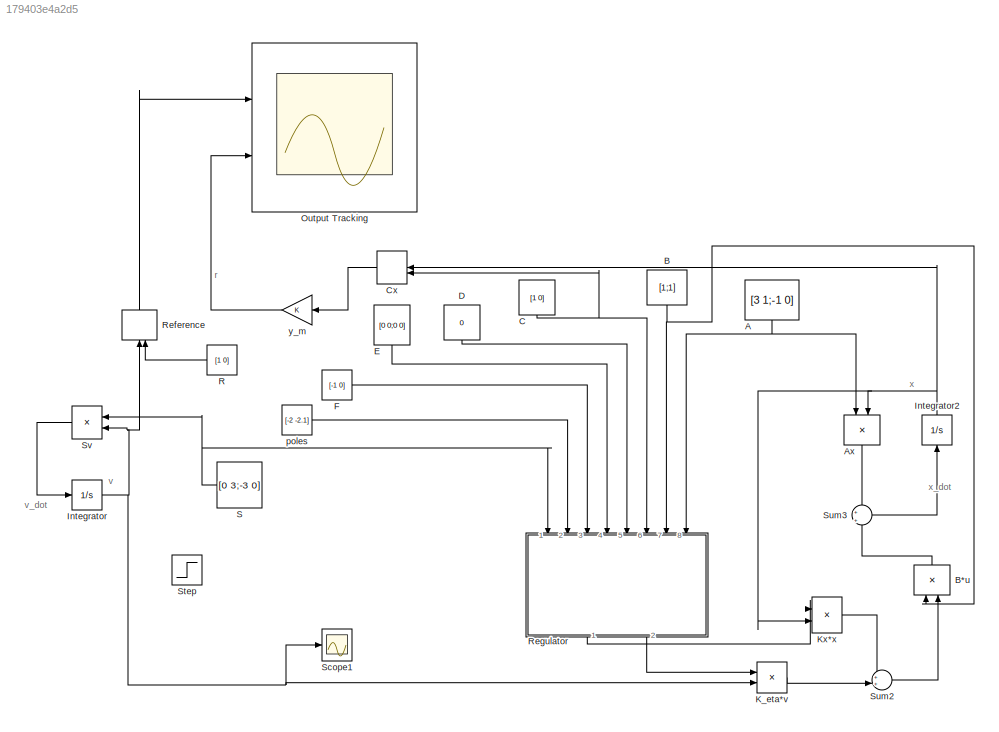
MODEL slx_179403e4a2d5
KIND model
CONFIG AbsTol = auto
CONFIG EnableMultiTasking = off
CONFIG FixedStep = auto
CONFIG MaxStep = 0.01
CONFIG MinStep = auto
CONFIG RelTol = 1e-3
CONFIG SampleTimeConstraint = Unconstrained
CONFIG Solver = ode23tb
CONFIG SolverName = ode23tb
CONFIG StartTime = 0.0
CONFIG StopTime = 10.0
BLOCK [Constant] A
  Value = [3 1;-1 0]
BLOCK [Product] Ax
  InputSameDT = off
  Multiplication = Matrix(*)
  OutDataTypeStr = Inherit: Inherit via internal rule
  Ports = [2, 1]
  RndMeth = Floor
  SaturateOnIntegerOverflow = off
BLOCK [Constant] B
  Value = [1;1]
  VectorParams1D = off
BLOCK [Product] B*u
  InputSameDT = off
  Multiplication = Matrix(*)
  OutDataTypeStr = Inherit: Inherit via internal rule
  Ports = [2, 1]
  RndMeth = Floor
  SaturateOnIntegerOverflow = off
BLOCK [Constant] C
  Value = [1 0]
  VectorParams1D = off
BLOCK [DotProduct] Cx
  OutDataTypeStr = Inherit: Inherit via internal rule
BLOCK [Constant] D
  Value = 0
BLOCK [Constant] E
  Value = [0 0;0 0]
BLOCK [Constant] F
  Value = [-1 0]
  VectorParams1D = off
BLOCK [Integrator] Integrator
  InitialCondition = [1;0]
  Ports = [1, 1]
BLOCK [Integrator] Integrator2
  InitialCondition = [1 1]
  Ports = [1, 1]
BLOCK [Product] K_eta*v
  InputSameDT = off
  Multiplication = Matrix(*)
  OutDataTypeStr = Inherit: Inherit via internal rule
  Ports = [2, 1]
  RndMeth = Floor
  SaturateOnIntegerOverflow = off
BLOCK [Product] Kx*x
  InputSameDT = off
  Multiplication = Matrix(*)
  OutDataTypeStr = Inherit: Inherit via internal rule
  Ports = [2, 1]
  RndMeth = Floor
  SaturateOnIntegerOverflow = off
BLOCK [Scope] Output Tracking
  NumInputPorts = 2
  Ports = [2]
  ScopeSpecificationString = Simulink.scopes.TimeScopeBlockCfg('CurrentConfiguration', extmgr.ConfigurationSet(extmgr.Configuration('Core','General UI',true),extmgr.Configuration('Core','Source UI',true),extmgr.Configuration('Sources','WiredSimulink',true),extmgr.Configuration('Visuals','Time Domain',true,'SerializedDisplays',{struct('MinYLimReal','-1.25027','MaxYLimReal','1.25246','YLabelReal','','MinYLimMag','0.00000','MaxY...<+1362ch>
BLOCK [Constant] R
  Value = [1 0]
BLOCK [DotProduct] Reference
  OutDataTypeStr = Inherit: Inherit via internal rule
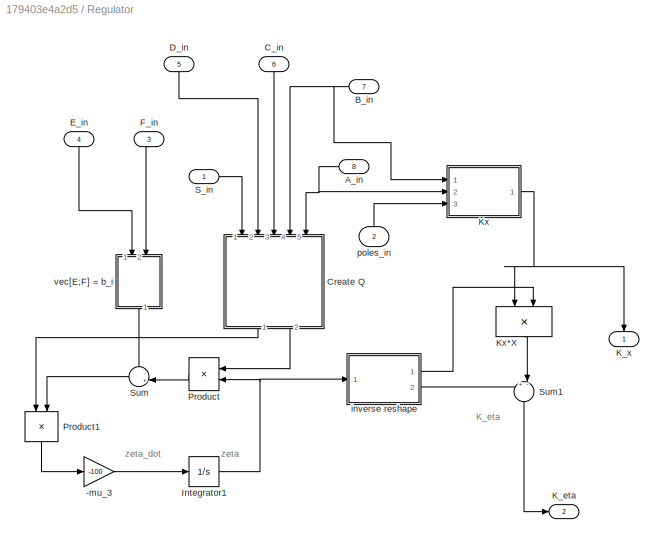
BLOCK [SubSystem] Regulator
  Ports = [8, 2]
  RequestExecContextInheritance = off
  Variant = off
BLOCK [Gain] Regulator/-mu_3
  Gain = -100
  OutDataTypeStr = Inherit: Inherit via internal rule
  ParamDataTypeStr = Inherit: Inherit via internal rule
  SaturateOnIntegerOverflow = off
BLOCK [Inport] Regulator/A_in
  IconDisplay = Port number
  Port = 8
BLOCK [Inport] Regulator/B_in
  IconDisplay = Port number
  Port = 7
BLOCK [Inport] Regulator/C_in
  IconDisplay = Port number
  Port = 6
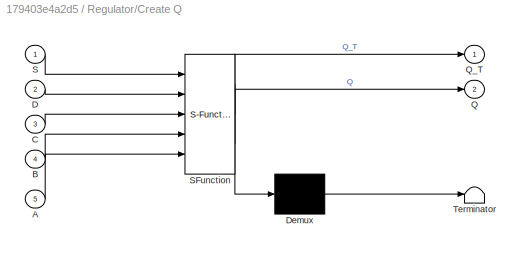
BLOCK [SubSystem] Regulator/Create Q
  ErrorFcn = Stateflow.Translate.translate
  PermitHierarchicalResolution = ExplicitOnly
  Ports = [5, 2]
  RequestExecContextInheritance = off
  SFBlockType = MATLAB Function
  TreatAsAtomicUnit = on
  Variant = off
BLOCK [Demux] Regulator/Create Q/ Demux 
  Outputs = 1
  Ports = [1, 1]
BLOCK [S-Function] Regulator/Create Q/ SFunction 
  EnableBusSupport = on
  FunctionName = sf_sfun
  PortCounts = [5 3]
  Ports = [5, 3]
  SFcnIsStateOwnerBlock = off
  SFunctionDeploymentMode = off
  Tag = Stateflow S-Function Regulator_Solver_2016_final 2
BLOCK [Terminator] Regulator/Create Q/ Terminator 
BLOCK [Inport] Regulator/Create Q/A
  IconDisplay = Port number
  Port = 5
BLOCK [Inport] Regulator/Create Q/B
  IconDisplay = Port number
  Port = 4
BLOCK [Inport] Regulator/Create Q/C
  IconDisplay = Port number
  Port = 3
BLOCK [Inport] Regulator/Create Q/D
  IconDisplay = Port number
  Port = 2
BLOCK [Outport] Regulator/Create Q/Q
  IconDisplay = Port number
  Port = 2
BLOCK [Outport] Regulator/Create Q/Q_T
  IconDisplay = Port number
BLOCK [Inport] Regulator/Create Q/S
  IconDisplay = Port number
BLOCK [Inport] Regulator/D_in
  IconDisplay = Port number
  Port = 5
BLOCK [Inport] Regulator/E_in
  IconDisplay = Port number
  Port = 4
BLOCK [Inport] Regulator/F_in
  IconDisplay = Port number
  Port = 3
BLOCK [Integrator] Regulator/Integrator1
  InitialCondition = [1;1;1;1;1;1]
  Ports = [1, 1]
BLOCK [Outport] Regulator/K_eta
  IconDisplay = Port number
  Port = 2
BLOCK [Outport] Regulator/K_x
  IconDisplay = Port number
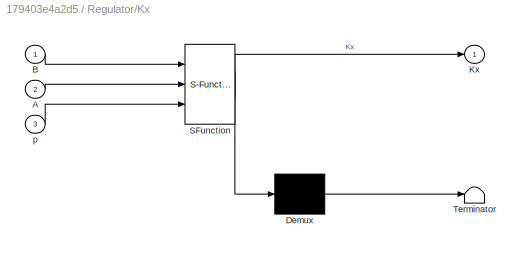
BLOCK [SubSystem] Regulator/Kx
  ErrorFcn = Stateflow.Translate.translate
  PermitHierarchicalResolution = ExplicitOnly
  Ports = [3, 1]
  RequestExecContextInheritance = off
  SFBlockType = MATLAB Function
  TreatAsAtomicUnit = on
  Variant = off
BLOCK [Product] Regulator/Kx*X
  InputSameDT = off
  Inputs = **
  Multiplication = Matrix(*)
  OutDataTypeStr = Inherit: Inherit via internal rule
  Ports = [2, 1]
  RndMeth = Floor
  SaturateOnIntegerOverflow = off
BLOCK [Demux] Regulator/Kx/ Demux 
  Outputs = 1
  Ports = [1, 1]
BLOCK [S-Function] Regulator/Kx/ SFunction 
  EnableBusSupport = on
  FunctionName = sf_sfun
  PortCounts = [3 2]
  Ports = [3, 2]
  SFcnIsStateOwnerBlock = off
  SFunctionDeploymentMode = off
  Tag = Stateflow S-Function Regulator_Solver_2016_final 4
BLOCK [Terminator] Regulator/Kx/ Terminator 
BLOCK [Inport] Regulator/Kx/A
  IconDisplay = Port number
  Port = 2
BLOCK [Inport] Regulator/Kx/B
  IconDisplay = Port number
BLOCK [Outport] Regulator/Kx/Kx
  IconDisplay = Port number
BLOCK [Inport] Regulator/Kx/p
  IconDisplay = Port number
  Port = 3
BLOCK [Product] Regulator/Product
  InputSameDT = off
  Multiplication = Matrix(*)
  OutDataTypeStr = Inherit: Inherit via internal rule
  Ports = [2, 1]
  RndMeth = Floor
  SaturateOnIntegerOverflow = off
BLOCK [Product] Regulator/Product1
  InputSameDT = off
  Multiplication = Matrix(*)
  OutDataTypeStr = Inherit: Inherit via internal rule
  Ports = [2, 1]
  RndMeth = Floor
  SaturateOnIntegerOverflow = off
BLOCK [Inport] Regulator/S_in
  IconDisplay = Port number
BLOCK [Sum] Regulator/Sum
  IconShape = round
  InputSameDT = off
  Inputs = -+|
  OutDataTypeStr = Inherit: Inherit via internal rule
  Ports = [2, 1]
  SaturateOnIntegerOverflow = off
BLOCK [Sum] Regulator/Sum1
  IconShape = round
  InputSameDT = off
  Inputs = +-|
  OutDataTypeStr = Inherit: Inherit via internal rule
  Ports = [2, 1]
  SaturateOnIntegerOverflow = off
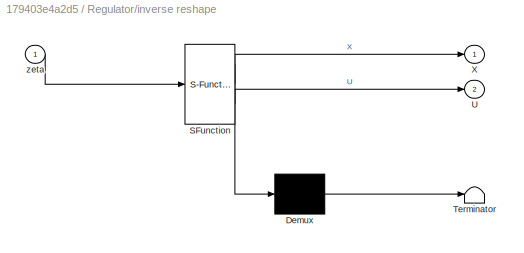
BLOCK [SubSystem] Regulator/inverse reshape
  ErrorFcn = Stateflow.Translate.translate
  PermitHierarchicalResolution = ExplicitOnly
  Ports = [1, 2]
  RequestExecContextInheritance = off
  SFBlockType = MATLAB Function
  TreatAsAtomicUnit = on
  Variant = off
BLOCK [Demux] Regulator/inverse reshape/ Demux 
  Outputs = 1
  Ports = [1, 1]
BLOCK [S-Function] Regulator/inverse reshape/ SFunction 
  EnableBusSupport = on
  FunctionName = sf_sfun
  PortCounts = [1 3]
  Ports = [1, 3]
  SFcnIsStateOwnerBlock = off
  SFunctionDeploymentMode = off
  Tag = Stateflow S-Function Regulator_Solver_2016_final 3
BLOCK [Terminator] Regulator/inverse reshape/ Terminator 
BLOCK [Outport] Regulator/inverse reshape/U
  IconDisplay = Port number
  Port = 2
BLOCK [Outport] Regulator/inverse reshape/X
  IconDisplay = Port number
BLOCK [Inport] Regulator/inverse reshape/zeta
  IconDisplay = Port number
BLOCK [Inport] Regulator/poles_in
  IconDisplay = Port number
  Port = 2
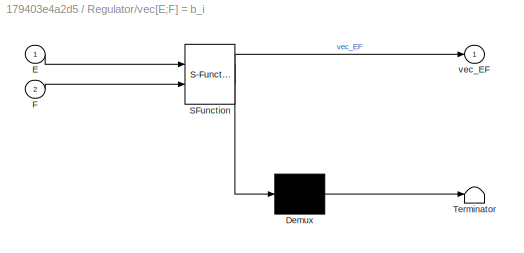
BLOCK [SubSystem] Regulator/vec[E;F] = b_i   
  ErrorFcn = Stateflow.Translate.translate
  PermitHierarchicalResolution = ExplicitOnly
  Ports = [2, 1]
  RequestExecContextInheritance = off
  SFBlockType = MATLAB Function
  TreatAsAtomicUnit = on
  Variant = off
BLOCK [Demux] Regulator/vec[E;F] = b_i   / Demux 
  Outputs = 1
  Ports = [1, 1]
BLOCK [S-Function] Regulator/vec[E;F] = b_i   / SFunction 
  EnableBusSupport = on
  FunctionName = sf_sfun
  PortCounts = [2 2]
  Ports = [2, 2]
  SFcnIsStateOwnerBlock = off
  SFunctionDeploymentMode = off
  Tag = Stateflow S-Function Regulator_Solver_2016_final 1
BLOCK [Terminator] Regulator/vec[E;F] = b_i   / Terminator 
BLOCK [Inport] Regulator/vec[E;F] = b_i   /E
  IconDisplay = Port number
BLOCK [Inport] Regulator/vec[E;F] = b_i   /F
  IconDisplay = Port number
  Port = 2
BLOCK [Outport] Regulator/vec[E;F] = b_i   /vec_EF
  IconDisplay = Port number
BLOCK [Constant] S
  Value = [0 3;-3 0]
BLOCK [Scope] Scope1
  NumInputPorts = 1
  Ports = [1]
  ScopeSpecificationString = Simulink.scopes.TimeScopeBlockCfg('CurrentConfiguration', extmgr.ConfigurationSet(extmgr.Configuration('Core','General UI',true),extmgr.Configuration('Core','Source UI',true),extmgr.Configuration('Sources','WiredSimulink',true,'DataLoggingVariableName','ScopeData1'),extmgr.Configuration('Visuals','Time Domain',true,'SerializedDisplays',{struct('MinYLimReal','-1.25','MaxYLimReal','1.25','YLabelReal...<+1396ch>
BLOCK [Step] Step
  SampleTime = 0
BLOCK [Sum] Sum2
  IconShape = round
  InputSameDT = off
  Inputs = ++|
  OutDataTypeStr = Inherit: Inherit via internal rule
  Ports = [2, 1]
  SaturateOnIntegerOverflow = off
BLOCK [Sum] Sum3
  IconShape = round
  InputSameDT = off
  Inputs = +|+
  OutDataTypeStr = Inherit: Inherit via internal rule
  Ports = [2, 1]
  SaturateOnIntegerOverflow = off
BLOCK [Product] Sv
  InputSameDT = off
  Inputs = **
  Multiplication = Matrix(*)
  OutDataTypeStr = Inherit: Inherit via internal rule
  Ports = [2, 1]
  RndMeth = Floor
  SaturateOnIntegerOverflow = off
BLOCK [Constant] poles
  Value = [-2 -2.1]
BLOCK [Gain] y_m
  OutDataTypeStr = Inherit: Inherit via internal rule
  ParamDataTypeStr = Inherit: Inherit via internal rule
  SaturateOnIntegerOverflow = off
ANNOTATION (root): r
ANNOTATION (root): v
ANNOTATION (root): v_dot
ANNOTATION (root): x
ANNOTATION (root): x_dot
ANNOTATION Regulator: K_eta
ANNOTATION Regulator: zeta
ANNOTATION Regulator: zeta_dot
NET A:1 -> Ax:1, Regulator:8
LINE Ax:1 -> Sum3:1
LINE B*u:1 -> Sum3:2
NET B:1 -> B*u:1, Regulator:7
NET C:1 -> Cx:2, Regulator:6
LINE Cx:1 -> y_m:1
LINE D:1 -> Regulator:5
LINE E:1 -> Regulator:4
LINE F:1 -> Regulator:3
NET Integrator2:1 -> Ax:2, Cx:1, Kx*x:2
NET Integrator:1 -> K_eta*v:2, Reference:1, Scope1:1, Sv:2
LINE K_eta*v:1 -> Sum2:2
LINE Kx*x:1 -> Sum2:1
LINE R:1 -> Reference:2
LINE Reference:1 -> Output Tracking:1
LINE Regulator/-mu_3:1 -> Regulator/Integrator1:1
NET Regulator/A_in:1 -> Regulator/Create Q:5, Regulator/Kx:2
NET Regulator/B_in:1 -> Regulator/Create Q:4, Regulator/Kx:1
LINE Regulator/C_in:1 -> Regulator/Create Q:3
LINE Regulator/Create Q:1 -> Regulator/Product1:1
LINE Regulator/Create Q:2 -> Regulator/Product:1
LINE Regulator/D_in:1 -> Regulator/Create Q:2
LINE Regulator/E_in:1 -> Regulator/vec[E;F] = b_i   :1
LINE Regulator/F_in:1 -> Regulator/vec[E;F] = b_i   :2
NET Regulator/Integrator1:1 -> Regulator/Product:2, Regulator/inverse reshape:1
LINE Regulator/Kx*X:1 -> Regulator/Sum1:2
NET Regulator/Kx:1 -> Regulator/K_x:1, Regulator/Kx*X:1
LINE Regulator/Product1:1 -> Regulator/-mu_3:1
LINE Regulator/Product:1 -> Regulator/Sum:2
LINE Regulator/S_in:1 -> Regulator/Create Q:1
LINE Regulator/Sum1:1 -> Regulator/K_eta:1
LINE Regulator/Sum:1 -> Regulator/Product1:2
LINE Regulator/inverse reshape:1 -> Regulator/Kx*X:2
LINE Regulator/inverse reshape:2 -> Regulator/Sum1:1
LINE Regulator/poles_in:1 -> Regulator/Kx:3
LINE Regulator/vec[E;F] = b_i   :1 -> Regulator/Sum:1
LINE Regulator:1 -> Kx*x:1
LINE Regulator:2 -> K_eta*v:1
NET S:1 -> Regulator:1, Sv:1
LINE Sum2:1 -> B*u:2
LINE Sum3:1 -> Integrator2:1
LINE Sv:1 -> Integrator:1
LINE poles:1 -> Regulator:2
LINE y_m:1 -> Output Tracking:2
note: NET lines group one-source signal fan-out (src -> all destinations, sorted); 1:1 wires keep LINE
CHART Regulator/vec[E;F]
= b_i    states=1 transitions=1
  STATE_LABEL 'eML_blk_kernel()'
  STATE_LABEL 'SCRIPT:\nfunction vec_EF = fcn(E,F)\n\n\nvec_EF = reshape([E;F],6,1);\nend'
CHART Regulator/Create Q states=1 transitions=1
  STATE_LABEL 'eML_blk_kernel()'
  STATE_LABEL "SCRIPT:\nfunction [Q_T,Q]= fcn(S,D,C,B,A)\n\nI_ni_id = eye(2);\nI_ni = [I_ni_id [0;0];0 0 0];\nI_q = eye(2);\nsysmatrix = [A B;C D];\n\nQ = kron(S.',I_ni)-kron(I_q,sysmatrix);\nQ_T = Q.';\nend"
CHART Regulator/inverse reshape states=1 transitions=1
  STATE_LABEL 'eML_blk_kernel()'
  STATE_LABEL 'SCRIPT:\nfunction [X,U] = fcn(zeta)\n\ntmp = reshape(zeta,3,2);\nX = tmp(1:2,1:2);\nU = tmp(3,:);\nend\n'
CHART Regulator/Kx states=1 transitions=1
  STATE_LABEL 'eML_blk_kernel()'
  STATE_LABEL "SCRIPT:\nfunction Kx = fcn(B,A,p)\n\ncoder.extrinsic('place')\nKx = zeros(1,2);\nKx = place(A,-B,p);\n\n"
